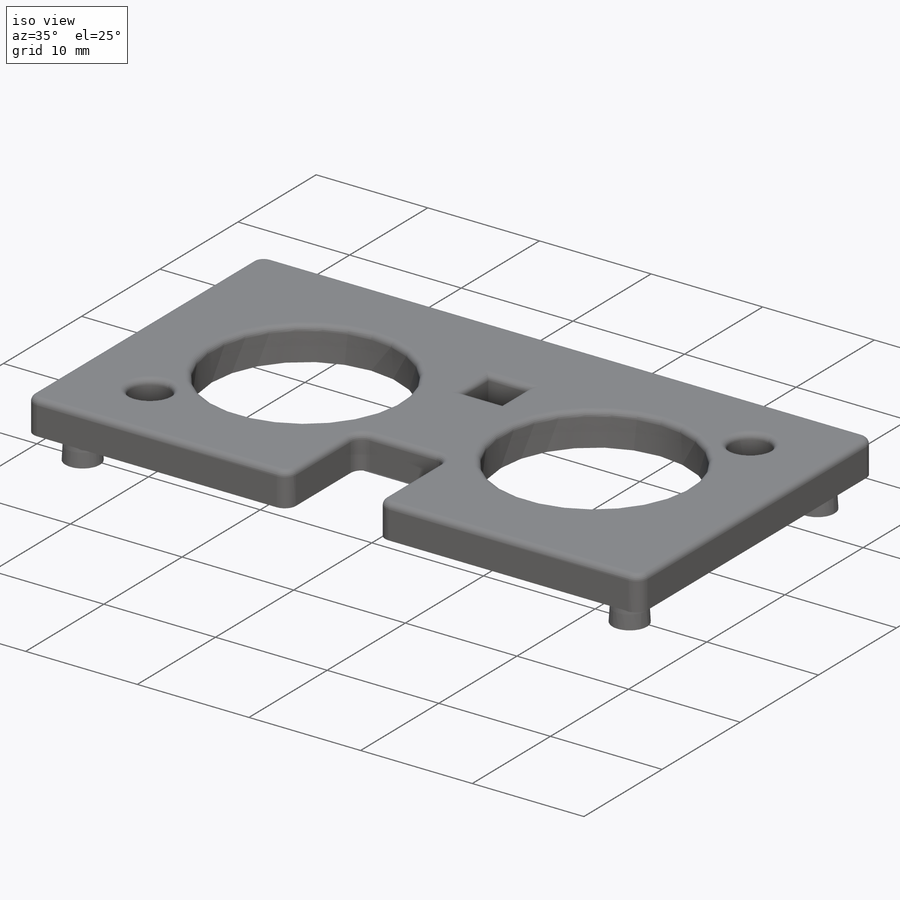
[diagram: iso view]
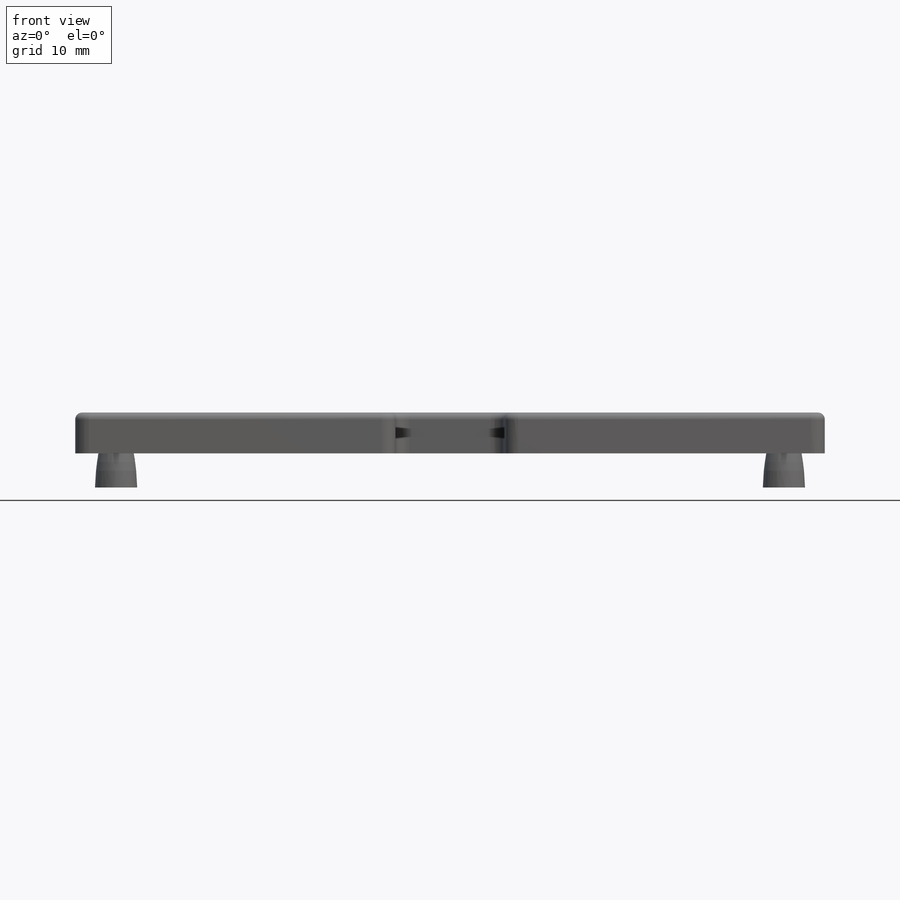
[diagram: front view]
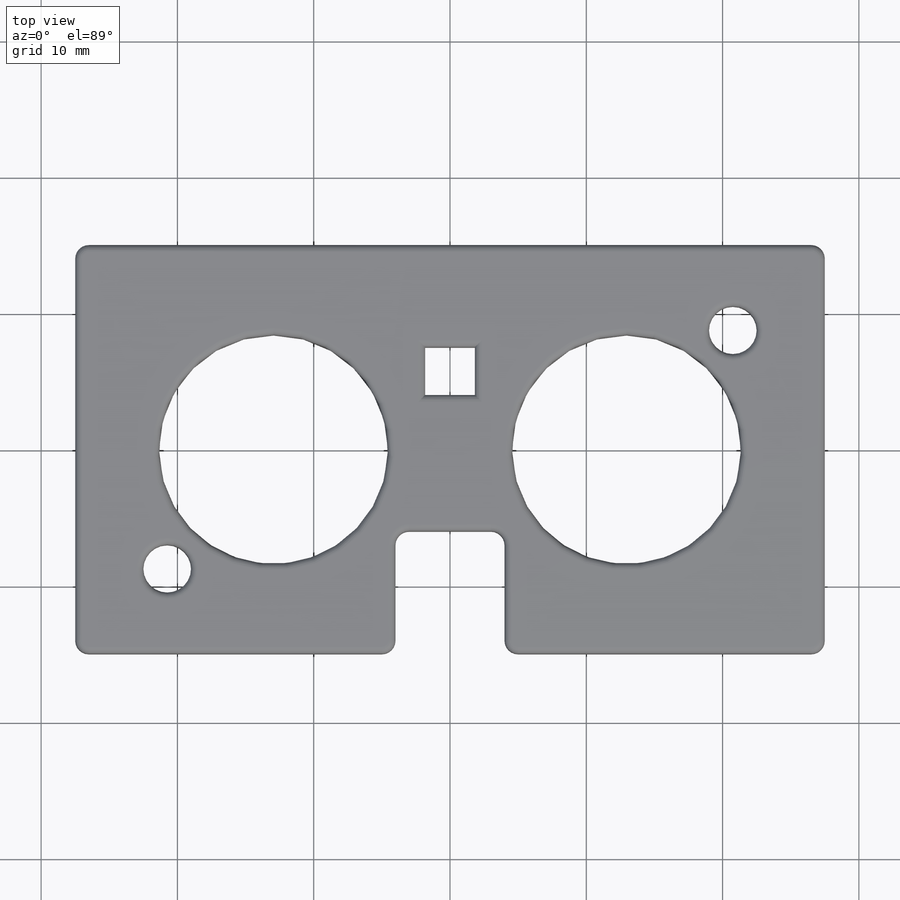
[diagram: top view]
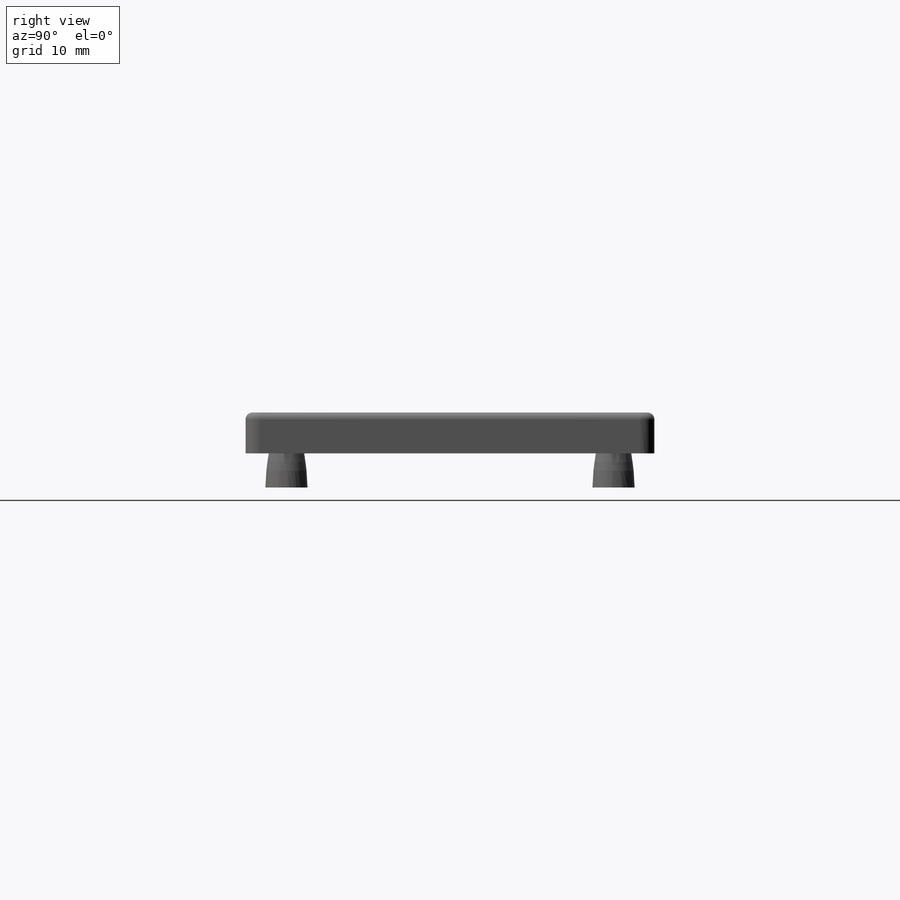
[diagram: right view]
SOLIDWORKS PART (.sldprt)
format: sldprt  version: not decoded by parser v0  size: 442,880 bytes
history: native  units: mm
features: sketch x6, plane x4, cut_extrude x2, mirror x2, fillet x2, material x1, extrude x1 (+12 scaffold rows collapsed)
feature tree (30):
  scaffold x12  (default folders/planes/origin — collapsed)
  material  "Material <not specified>"
  sketch  "Sketch1"  dims[D1=30.0mm D2=55.0mm]
  extrude  "Boss-Extrude1"  Depth=3mm
  sketch  "Sketch2"  dims[c1.D3=16.8mm c1.D4=16.5mm c1.D14=3.5mm c1.D1=46.0mm c1.D2=22.0mm c2.D4=1.65mm c2.D5=3.65mm c2.D6=3.5mm c2.D7=3.5mm c2.D8=8.0mm c2.D9=5.0mm c2.D10=2.25mm c2.D11=2.25mm c2.D12=2.25mm c2.D13=2.25mm]
  cut_extrude  "Cut-Extrude1"  [1 undecoded]
  sketch  "Sketch3"  dims[c1.D1=3.0mm c1.D2=2.6mm c2.D1=3.0mm]
  plane  "Plane1"  Offset=3mm
  sketch  "Sketch4"  dims[D1=3.1mm]
  plane  "Plane2"  Offset=6mm
  sketch  "Sketch5"
  plane  "Plane3"
  plane  "Plane4"
  mirror  "Mirror1"
  mirror  "Mirror2"
  fillet  "Fillet1"  Radius=1mm
  fillet  "Fillet2"  Radius=0.5mm
  sketch  "Sketch6"
  cut_extrude  "Cut-Extrude2"  Depth=3.5mm
decode coverage: 8 of 13 modeling features carry decoded parameters
note: 1 parameter value undecoded
note: suppression state not decoded; provenance and decode notes live in map.json
